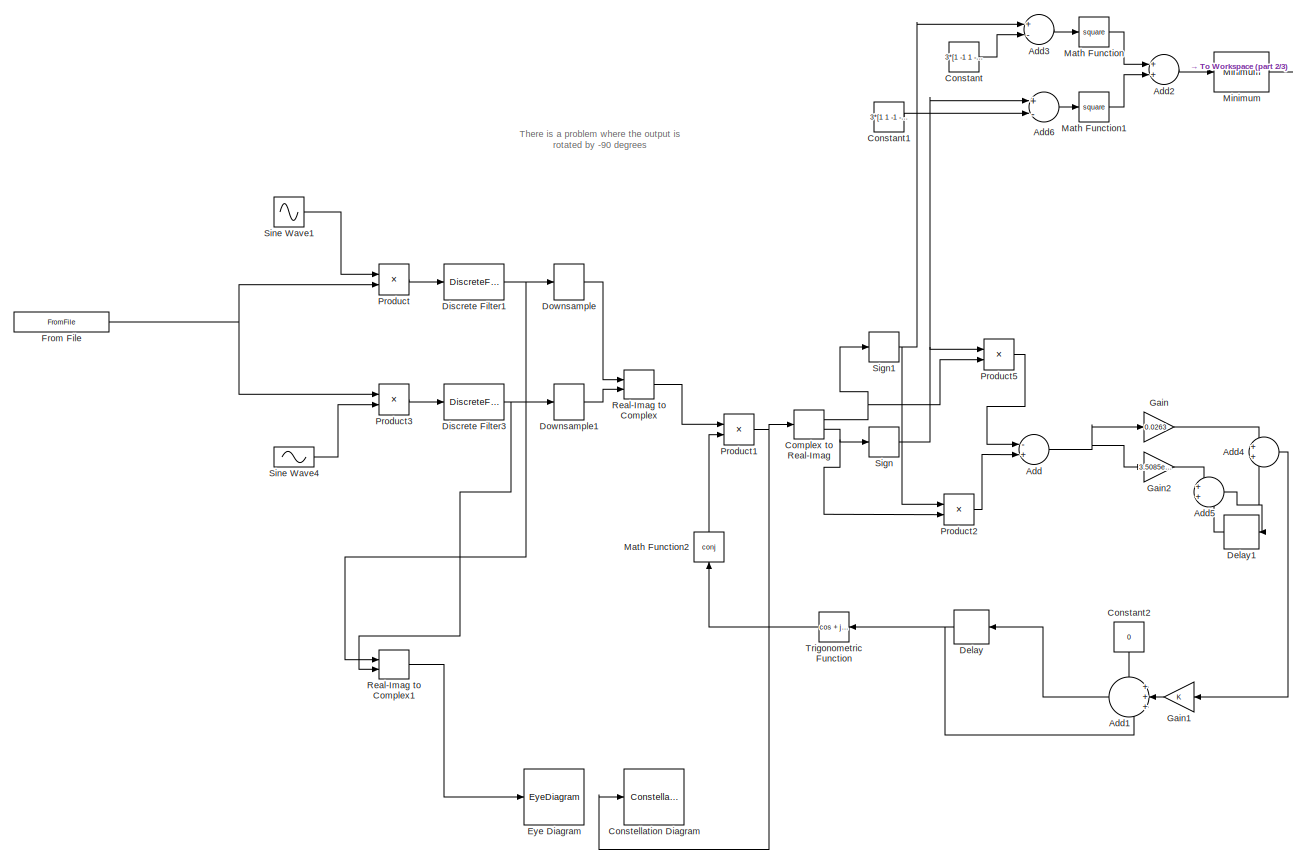
[diagram: root canvas - part 1/3, most of the canvas]
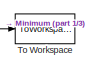
[diagram: root canvas - part 2/3, top right region]
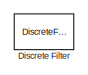
[diagram: root canvas - part 3/3, middle right region]
MODEL slx_52a184e88d88
KIND model
CONFIG AbsTol = auto
CONFIG EnableMultiTasking = on
CONFIG FixedStep = auto
CONFIG MaxStep = auto
CONFIG MinStep = auto
CONFIG RelTol = 1e-3
CONFIG SampleTimeConstraint = Unconstrained
CONFIG Solver = VariableStepAuto
CONFIG SolverName = VariableStepAuto
CONFIG StartTime = 0.0
CONFIG StopTime = (12+8+84)*8*4-1
BLOCK [Sum] Add
  InputSameDT = off
  Inputs = -+
  OutDataTypeStr = Inherit: Inherit via internal rule
  Ports = [2, 1]
  SaturateOnIntegerOverflow = off
BLOCK [Sum] Add1
  IconShape = round
  InputSameDT = off
  Inputs = +++
  OutDataTypeStr = Inherit: Inherit via internal rule
  Ports = [3, 1]
  SaturateOnIntegerOverflow = off
BLOCK [Sum] Add2
  InputSameDT = off
  OutDataTypeStr = Inherit: Inherit via internal rule
  Ports = [2, 1]
  SaturateOnIntegerOverflow = off
BLOCK [Sum] Add3
  InputSameDT = off
  Inputs = +-
  OutDataTypeStr = Inherit: Inherit via internal rule
  Ports = [2, 1]
  SaturateOnIntegerOverflow = off
BLOCK [Sum] Add4
  IconShape = round
  InputSameDT = off
  OutDataTypeStr = Inherit: Inherit via internal rule
  Ports = [2, 1]
  SaturateOnIntegerOverflow = off
BLOCK [Sum] Add5
  IconShape = round
  InputSameDT = off
  OutDataTypeStr = Inherit: Inherit via internal rule
  Ports = [2, 1]
  SaturateOnIntegerOverflow = off
BLOCK [Sum] Add6
  InputSameDT = off
  Inputs = +-
  OutDataTypeStr = Inherit: Inherit via internal rule
  Ports = [2, 1]
  SaturateOnIntegerOverflow = off
BLOCK [ComplexToRealImag] Complex to Real-Imag
  Ports = [1, 2]
BLOCK [Constant] Constant
  Value = 3*[1 -1 1 -1] /sqrt(2)
BLOCK [Constant] Constant1
  Value = 3*[1 1 -1 -1] /sqrt(2)
BLOCK [Constant] Constant2
  Value = 0
BLOCK [ConstellationDiagram] Constellation Diagram
  Ports = [1]
  ScopeSpecificationString = comm.scopes.ConstellationDiagramBlockCfg('CurrentConfiguration', extmgr.ConfigurationSet(extmgr.Configuration('Core','General UI',true),extmgr.Configuration('Core','Source UI',true),extmgr.Configuration('Sources','WiredSimulink',true),extmgr.Configuration('Sources','Simulink',false),extmgr.Configuration('Sources','SimulinkEvent',false),extmgr.Configuration('Sources','File',false),extmgr.Configurat...<+2194ch>
BLOCK [Delay] Delay
  DelayLength = 1
  InputPortMap = u0
  Ports = [1, 1]
BLOCK [Delay] Delay1
  DelayLength = 1
  InputPortMap = u0
  Ports = [1, 1]
BLOCK [DiscreteFilter] Discrete Filter
  Commented = on
  Denominator = [1 -1]
  InputPortMap = u0
  Numerator = [(K1+K2) -K1]
  Ports = [1, 1]
BLOCK [DiscreteFilter] Discrete Filter1
  Denominator = [1]
  InputPortMap = u0
  Numerator = rcosine(1,8,'fir/sqrt',0.5,6)
  Ports = [1, 1]
BLOCK [DiscreteFilter] Discrete Filter3
  Denominator = [1]
  InputPortMap = u0
  Numerator = rcosine(1,8,'fir/sqrt',0.5,6)
  Ports = [1, 1]
BLOCK [DownSample] Downsample
  InputProcessing = Inherited (this choice will be removed - see release notes)
  N = 8
  RateOptions = Allow multirate processing
BLOCK [DownSample] Downsample1
  InputProcessing = Inherited (this choice will be removed - see release notes)
  N = 8
  RateOptions = Allow multirate processing
BLOCK [EyeDiagram] Eye Diagram
  Ports = [1]
  ScopeSpecificationString = comm.scopes.EyeDiagramBlockCfg('CurrentConfiguration', extmgr.ConfigurationSet(extmgr.Configuration('Core','General UI',true),extmgr.Configuration('Core','Source UI',true),extmgr.Configuration('Sources','WiredSimulink',true),extmgr.Configuration('Sources','Simulink',false),extmgr.Configuration('Sources','File',false),extmgr.Configuration('Sources','SimulinkEvent',false),extmgr.Configuration('Sourc...<+1879ch>
BLOCK [FromFile] From File
  FileName = qpskcruwdata.mat
BLOCK [Gain] Gain
  Gain = 0.0263
  OutDataTypeStr = Inherit: Inherit via internal rule
  ParamDataTypeStr = Inherit: Inherit via internal rule
  SaturateOnIntegerOverflow = off
BLOCK [Gain] Gain1
  OutDataTypeStr = Inherit: Inherit via internal rule
  ParamDataTypeStr = Inherit: Inherit via internal rule
  SaturateOnIntegerOverflow = off
BLOCK [Gain] Gain2
  Gain = 3.5085e-04
  OutDataTypeStr = Inherit: Inherit via internal rule
  ParamDataTypeStr = Inherit: Inherit via internal rule
  SaturateOnIntegerOverflow = off
BLOCK [Math] Math Function
  Operator = square
  Ports = [1, 1]
BLOCK [Math] Math Function1
  Operator = square
  Ports = [1, 1]
BLOCK [Math] Math Function2
  Operator = conj
  Ports = [1, 1]
BLOCK [Reference] Minimum  REF=dspstat3/Minimum
  Ports = [1, 1]
  SourceBlock = dspstat3/Minimum
  SourceType = Minimum
  UserDataPersistent = on
BLOCK [Product] Product
  InputSameDT = off
  OutDataTypeStr = Inherit: Inherit via internal rule
  Ports = [2, 1]
  RndMeth = Floor
  SaturateOnIntegerOverflow = off
BLOCK [Product] Product1
  InputSameDT = off
  OutDataTypeStr = Inherit: Inherit via internal rule
  Ports = [2, 1]
  RndMeth = Floor
  SaturateOnIntegerOverflow = off
BLOCK [Product] Product2
  InputSameDT = off
  OutDataTypeStr = Inherit: Inherit via internal rule
  Ports = [2, 1]
  RndMeth = Floor
  SaturateOnIntegerOverflow = off
BLOCK [Product] Product3
  InputSameDT = off
  OutDataTypeStr = Inherit: Inherit via internal rule
  Ports = [2, 1]
  RndMeth = Floor
  SaturateOnIntegerOverflow = off
BLOCK [Product] Product5
  InputSameDT = off
  OutDataTypeStr = Inherit: Inherit via internal rule
  Ports = [2, 1]
  RndMeth = Floor
  SaturateOnIntegerOverflow = off
BLOCK [RealImagToComplex] Real-Imag to Complex
  Ports = [2, 1]
BLOCK [RealImagToComplex] Real-Imag to Complex1
  Ports = [2, 1]
BLOCK [Signum] Sign
BLOCK [Signum] Sign1
BLOCK [Sin] Sine Wave1
  Amplitude = sqrt(2)
  Frequency = .3*2*pi
  Phase = pi/2
  Ports = [0, 1]
  SampleTime = 1
BLOCK [Sin] Sine Wave4
  Amplitude = -sqrt(2)
  Frequency = .3*2*pi
  Ports = [0, 1]
  SampleTime = 1
BLOCK [ToWorkspace] To Workspace
  FixptAsFi = on
  MaxDataPoints = inf
  Ports = [1]
  SampleTime = -1
  Save2DSignal = 3-D array (concatenate along third dimension)
  VariableName = QPSKbitsUW
BLOCK [Trigonometry] Trigonometric Function
  Operator = cos + jsin
  Ports = [1, 1]
ANNOTATION (root): There is a problem where the output is rotated by -90 degrees
LINE Add1:1 -> Delay:1
LINE Add2:1 -> Minimum:1
LINE Add3:1 -> Math Function:1
LINE Add4:1 -> Gain1:1
NET Add5:1 -> Add4:2, Delay1:1
LINE Add6:1 -> Math Function1:1
NET Add:1 -> Gain2:1, Gain:1
NET Complex to Real-Imag:1 -> Product5:2, Sign1:1
NET Complex to Real-Imag:2 -> Product2:2, Sign:1
LINE Constant1:1 -> Add6:2
LINE Constant2:1 -> Add1:1
LINE Constant:1 -> Add3:2
LINE Delay1:1 -> Add5:2
NET Delay:1 -> Add1:3, Trigonometric Function:1
NET Discrete Filter1:1 -> Downsample:1, Real-Imag to Complex1:1
NET Discrete Filter3:1 -> Downsample1:1, Real-Imag to Complex1:2
LINE Downsample1:1 -> Real-Imag to Complex:2
LINE Downsample:1 -> Real-Imag to Complex:1
NET From File:1 -> Product3:1, Product:2
LINE Gain1:1 -> Add1:2
LINE Gain2:1 -> Add5:1
LINE Gain:1 -> Add4:1
LINE Math Function1:1 -> Add2:2
LINE Math Function2:1 -> Product1:2
LINE Math Function:1 -> Add2:1
LINE Minimum:1 -> To Workspace:1
NET Product1:1 -> Complex to Real-Imag:1, Constellation Diagram:1
LINE Product2:1 -> Add:2
LINE Product3:1 -> Discrete Filter3:1
LINE Product5:1 -> Add:1
LINE Product:1 -> Discrete Filter1:1
LINE Real-Imag to Complex1:1 -> Eye Diagram:1
LINE Real-Imag to Complex:1 -> Product1:1
NET Sign1:1 -> Add3:1, Product2:1
NET Sign:1 -> Add6:1, Product5:1
LINE Sine Wave1:1 -> Product:1
LINE Sine Wave4:1 -> Product3:2
LINE Trigonometric Function:1 -> Math Function2:1
note: NET lines group one-source signal fan-out (src -> all destinations, sorted); 1:1 wires keep LINE
